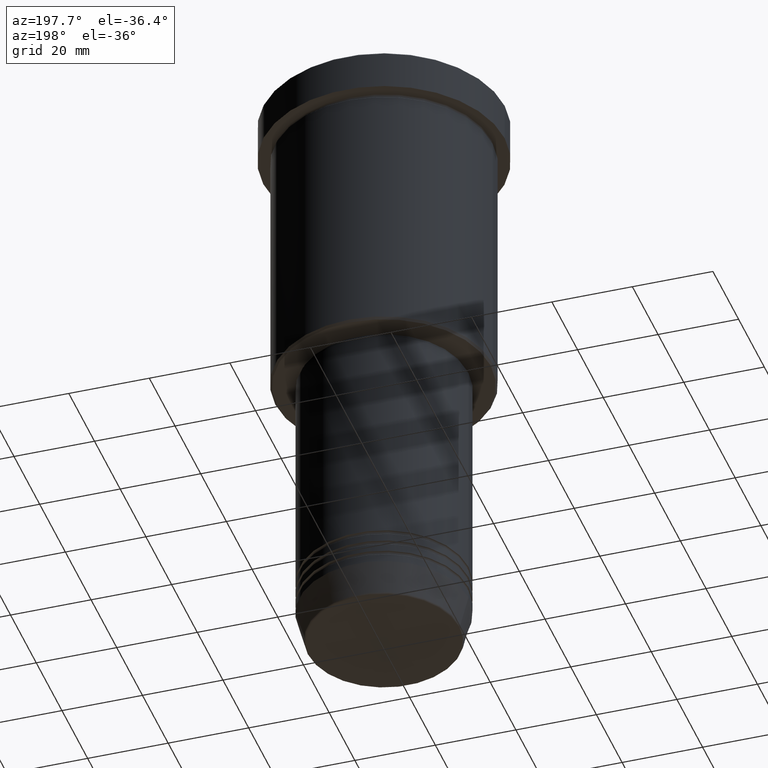
[diagram: clean part render]
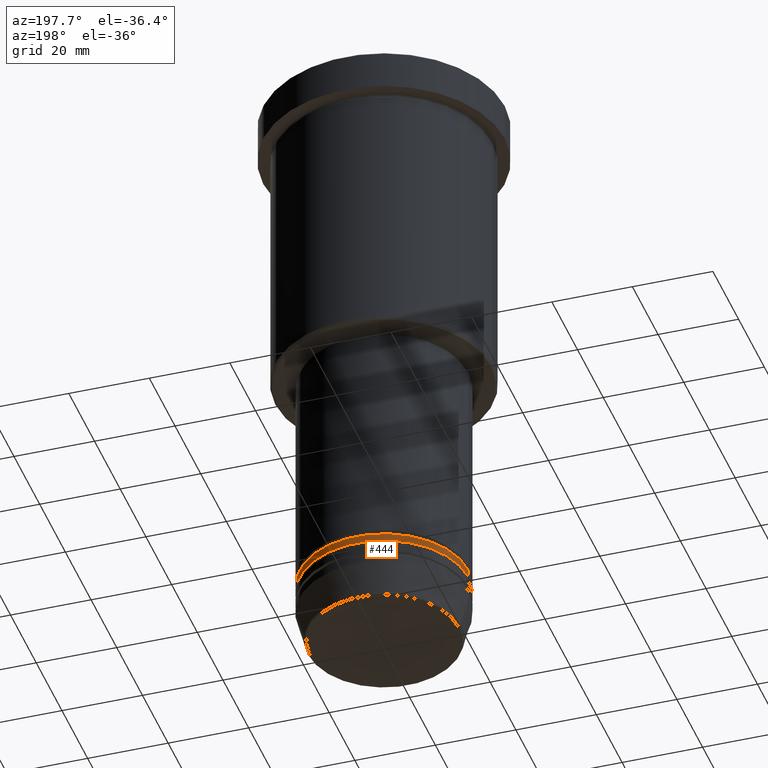
[diagram: same view with one face highlighted and labeled with its STEP entity id]
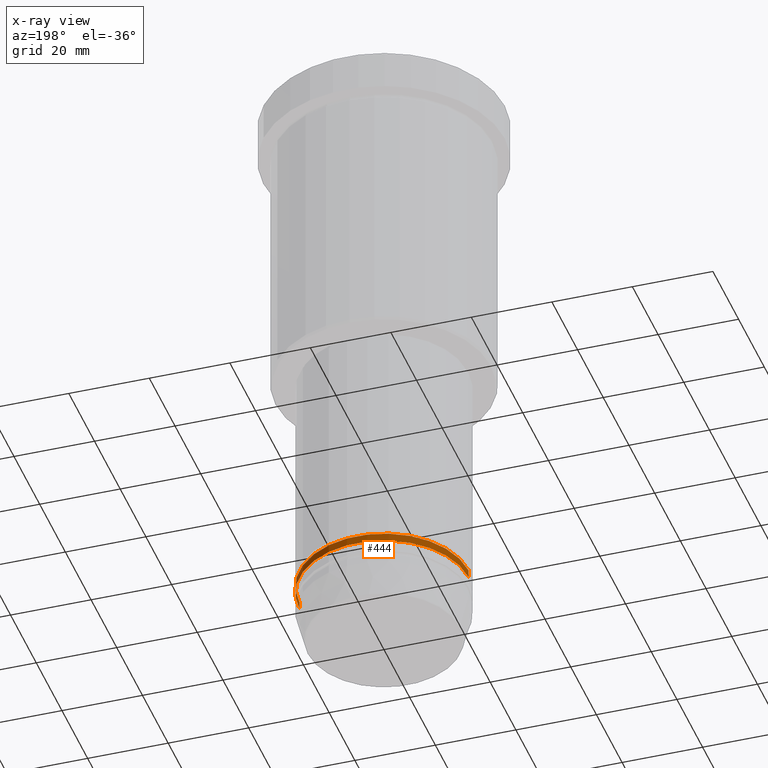
[diagram: x-ray of the same camera — body ghosted, the highlighted face saturated]
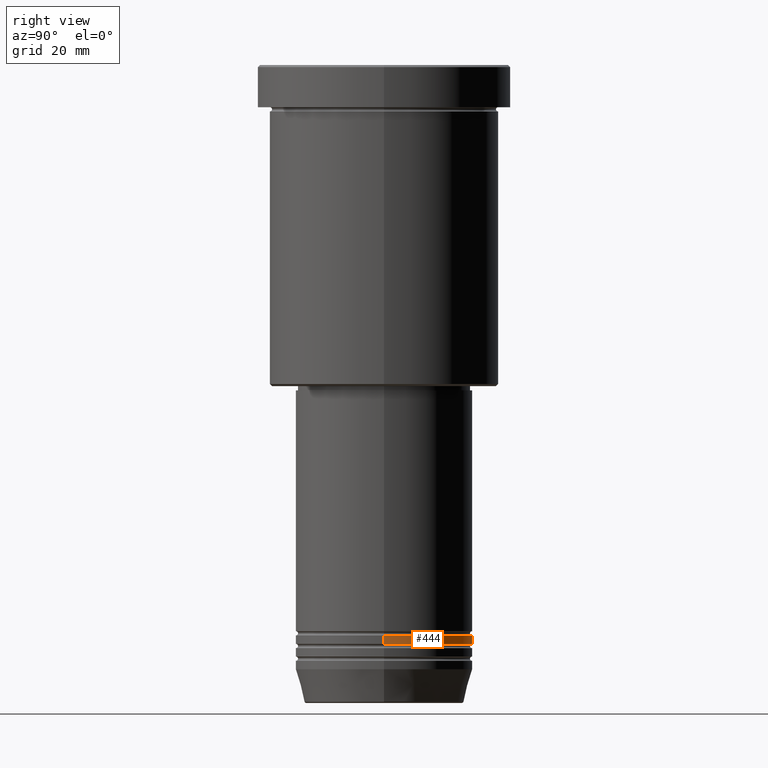
[diagram: same view with one face highlighted and labeled with its STEP entity id]
A machine part, auxiliary view. The second image highlights one B-rep face of the part: STEP entity #444.
The next image is the same camera in x-ray: the body ghosted, the highlighted face saturated — about 0% of this face is hidden behind the body in this view.
A second angle (right view) of the same face is appended — the face is thin or edge-on in the first view.
In plain terms, the highlighted cylindrical surface (partial cylindrical patch) has radius 21 mm, axis along (-0, -0, 1).
Its self-contained STEP definition (entity closure, byte-faithful):
#15 = DIRECTION ( 'NONE',  ( 1.000000000000000000, 0.000000000000000000, 0.000000000000000000 ) ) ;
#47 = CARTESIAN_POINT ( 'NONE',  ( -21.00000000000000000, 2.571758278209441661E-15, -136.9999999999999432 ) ) ;
#99 = VECTOR ( 'NONE', #1174, 1000.000000000000000 ) ;
#101 = VECTOR ( 'NONE', #509, 1000.000000000000000 ) ;
#105 = ORIENTED_EDGE ( 'NONE', *, *, #323, .F. ) ;
#152 = LINE ( 'NONE', #609, #101 ) ;
#185 = CARTESIAN_POINT ( 'NONE',  ( 21.00000000000000000, 0.000000000000000000, -134.9999999999999432 ) ) ;
#219 = AXIS2_PLACEMENT_3D ( 'NONE', #973, #429, #902 ) ;
#251 = FACE_OUTER_BOUND ( 'NONE', #582, .T. ) ;
#264 = VERTEX_POINT ( 'NONE', #380 ) ;
#295 = EDGE_CURVE ( 'NONE', #522, #482, #587, .T. ) ;
#322 = ORIENTED_EDGE ( 'NONE', *, *, #789, .T. ) ;
#323 = EDGE_CURVE ( 'NONE', #264, #522, #152, .T. ) ;
#375 = CARTESIAN_POINT ( 'NONE',  ( -21.00000000000000000, 2.571758278209441661E-15, 0.000000000000000000 ) ) ;
#380 = CARTESIAN_POINT ( 'NONE',  ( 21.00000000000000000, 0.000000000000000000, -136.9999999999999432 ) ) ;
#429 = DIRECTION ( 'NONE',  ( -0.000000000000000000, -0.000000000000000000, 1.000000000000000000 ) ) ;
#444 = ADVANCED_FACE ( 'NONE', ( #251 ), #801, .T. ) ;
#482 = VERTEX_POINT ( 'NONE', #536 ) ;
#509 = DIRECTION ( 'NONE',  ( -0.000000000000000000, -0.000000000000000000, 1.000000000000000000 ) ) ;
#522 = VERTEX_POINT ( 'NONE', #185 ) ;
#536 = CARTESIAN_POINT ( 'NONE',  ( -21.00000000000000000, 2.571758278209441661E-15, -134.9999999999999432 ) ) ;
#561 = DIRECTION ( 'NONE',  ( -0.000000000000000000, -0.000000000000000000, 1.000000000000000000 ) ) ;
#571 = CARTESIAN_POINT ( 'NONE',  ( 0.000000000000000000, 0.000000000000000000, -136.9999999999999432 ) ) ;
#582 = EDGE_LOOP ( 'NONE', ( #847, #322, #595, #105 ) ) ;
#587 = CIRCLE ( 'NONE', #945, 21.00000000000000000 ) ;
#595 = ORIENTED_EDGE ( 'NONE', *, *, #295, .F. ) ;
#609 = CARTESIAN_POINT ( 'NONE',  ( 21.00000000000000000, 0.000000000000000000, 0.000000000000000000 ) ) ;
#661 = CIRCLE ( 'NONE', #796, 21.00000000000000000 ) ;
#733 = CARTESIAN_POINT ( 'NONE',  ( 0.000000000000000000, 0.000000000000000000, -134.9999999999999432 ) ) ;
#789 = EDGE_CURVE ( 'NONE', #967, #482, #925, .T. ) ;
#796 = AXIS2_PLACEMENT_3D ( 'NONE', #571, #561, #15 ) ;
#801 = CYLINDRICAL_SURFACE ( 'NONE', #219, 21.00000000000000000 ) ;
#847 = ORIENTED_EDGE ( 'NONE', *, *, #906, .T. ) ;
#876 = DIRECTION ( 'NONE',  ( -0.000000000000000000, -0.000000000000000000, 1.000000000000000000 ) ) ;
#902 = DIRECTION ( 'NONE',  ( 1.000000000000000000, 0.000000000000000000, 0.000000000000000000 ) ) ;
#906 = EDGE_CURVE ( 'NONE', #264, #967, #661, .T. ) ;
#925 = LINE ( 'NONE', #375, #99 ) ;
#945 = AXIS2_PLACEMENT_3D ( 'NONE', #733, #876, #988 ) ;
#967 = VERTEX_POINT ( 'NONE', #47 ) ;
#973 = CARTESIAN_POINT ( 'NONE',  ( 0.000000000000000000, 0.000000000000000000, 0.000000000000000000 ) ) ;
#988 = DIRECTION ( 'NONE',  ( 1.000000000000000000, 0.000000000000000000, 0.000000000000000000 ) ) ;
#1174 = DIRECTION ( 'NONE',  ( -0.000000000000000000, -0.000000000000000000, 1.000000000000000000 ) ) ;